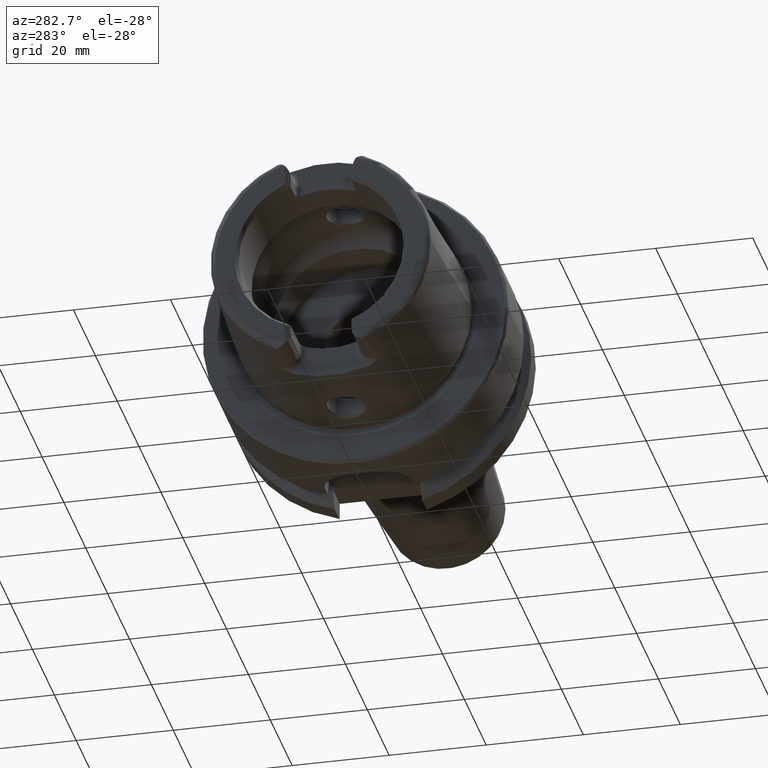
[diagram: clean part render]
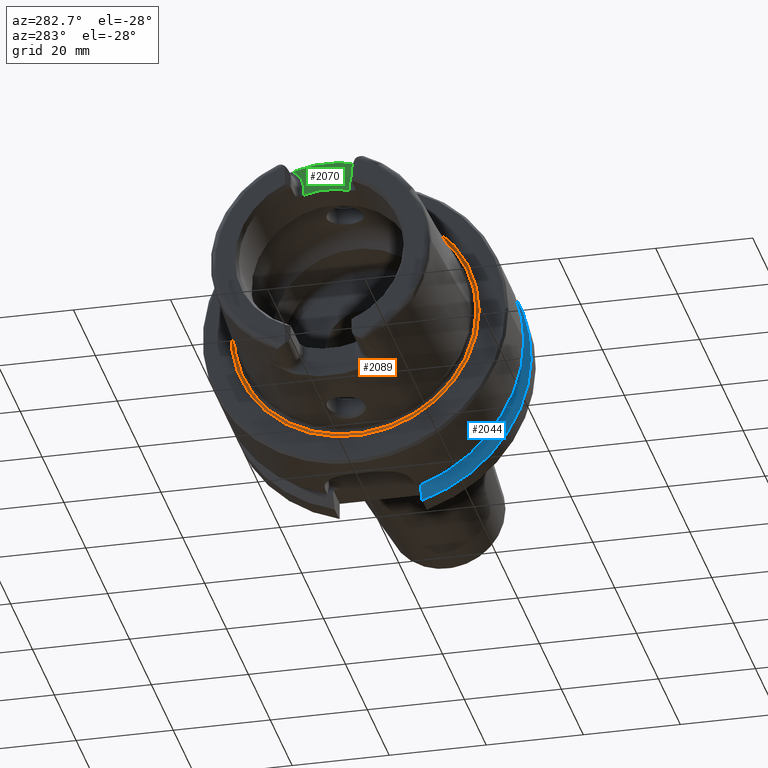
[diagram: same view with three faces highlighted in distinct colors, each labeled with its STEP entity id]
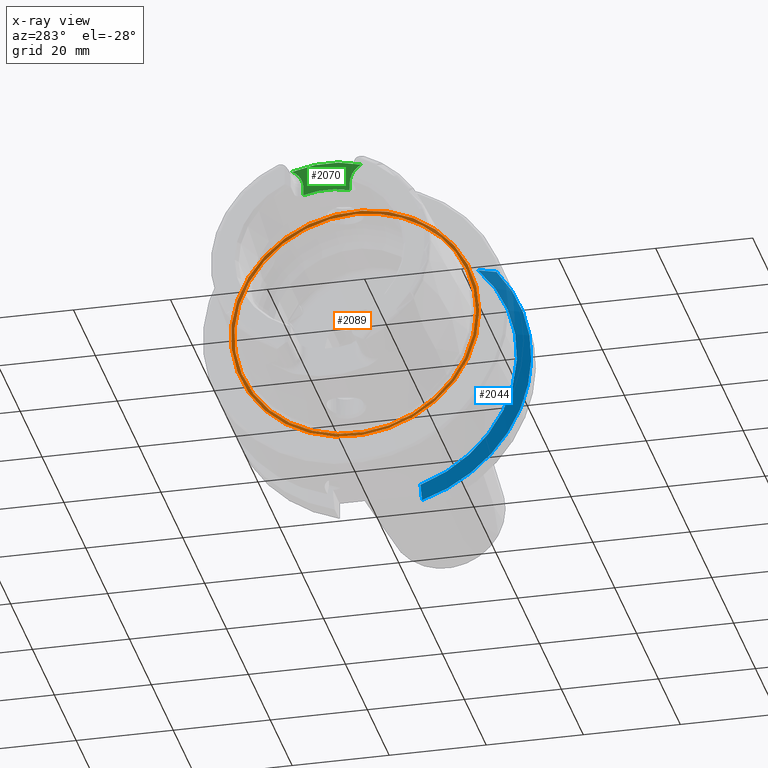
[diagram: x-ray of the same camera — body ghosted, the three highlighted faces saturated]
A machine part, auxiliary view with three faces highlighted in distinct colors.
The next image is the same camera in x-ray (body ghosted, the three faces saturated) — at least one of them is partly hidden behind the body in this view.
Their STEP definitions:

[orange] entity #2089 — the highlighted conical surface has half-angle 82 deg.
#326=FACE_OUTER_BOUND('',#457,.T.);
#457=EDGE_LOOP('',(#1934,#1935,#1936,#1937,#1938));
#568=LINE('',#4436,#676);
#676=VECTOR('',#2961,25.2598393130041);
#798=CIRCLE('',#2358,24.9317693424915);
#799=CIRCLE('',#2359,24.9317693424915);
#800=CIRCLE('',#2360,25.5879092835167);
#1005=VERTEX_POINT('',#4431);
#1006=VERTEX_POINT('',#4432);
#1007=VERTEX_POINT('',#4435);
#1316=EDGE_CURVE('',#1005,#1006,#798,.T.);
#1317=EDGE_CURVE('',#1006,#1005,#799,.T.);
#1318=EDGE_CURVE('',#1005,#1007,#568,.T.);
#1319=EDGE_CURVE('',#1007,#1007,#800,.T.);
#1934=ORIENTED_EDGE('',*,*,#1316,.T.);
#1935=ORIENTED_EDGE('',*,*,#1317,.T.);
#1936=ORIENTED_EDGE('',*,*,#1318,.T.);
#1937=ORIENTED_EDGE('',*,*,#1319,.F.);
#1938=ORIENTED_EDGE('',*,*,#1318,.F.);
#1973=CONICAL_SURFACE('',#2357,25.2598393130041,1.43116998663535);
#2089=ADVANCED_FACE('',(#326),#1973,.F.);
#2357=AXIS2_PLACEMENT_3D('',#4430,#2955,#2956);
#2358=AXIS2_PLACEMENT_3D('',#4433,#2957,#2958);
#2359=AXIS2_PLACEMENT_3D('',#4434,#2959,#2960);
#2360=AXIS2_PLACEMENT_3D('',#4437,#2962,#2963);
#2955=DIRECTION('center_axis',(-1.,0.,0.));
#2956=DIRECTION('ref_axis',(0.,1.,0.));
#2957=DIRECTION('center_axis',(1.,0.,0.));
#2958=DIRECTION('ref_axis',(0.,0.,-1.));
#2959=DIRECTION('center_axis',(1.,0.,0.));
#2960=DIRECTION('ref_axis',(0.,0.,-1.));
#2961=DIRECTION('',(-0.139173100960067,-0.99026806874157,-1.2127286206822E-16));
#2962=DIRECTION('center_axis',(1.,0.,0.));
#2963=DIRECTION('ref_axis',(0.,0.,-1.));
#4430=CARTESIAN_POINT('Origin',(0.0461072274966284,0.,0.));
#4431=CARTESIAN_POINT('',(0.092214454993257,-24.9317693424915,-3.05326115223623E-15));
#4432=CARTESIAN_POINT('',(0.0922144549932569,-3.05326115223623E-15,24.9317693424915));
#4433=CARTESIAN_POINT('Origin',(0.0922144549932569,0.,0.));
#4434=CARTESIAN_POINT('Origin',(0.0922144549932569,0.,0.));
#4435=CARTESIAN_POINT('',(-3.55618312575245E-16,-25.5879092835167,-3.13361512009315E-15));
#4436=CARTESIAN_POINT('',(0.0461072274966284,-25.2598393130041,-3.09343813616469E-15));
#4437=CARTESIAN_POINT('Origin',(0.,0.,0.));

[blue] entity #2044 — the highlighted conical surface has half-angle 60 deg.
#17=(
BOUNDED_CURVE()
B_SPLINE_CURVE(2,(#3834,#3835,#3836),.UNSPECIFIED.,.F.,.F.)
B_SPLINE_CURVE_WITH_KNOTS((3,3),(0.,0.378858277140999),.UNSPECIFIED.)
CURVE()
GEOMETRIC_REPRESENTATION_ITEM()
RATIONAL_B_SPLINE_CURVE((1.,1.00166199353854,1.))
REPRESENTATION_ITEM('')
);
#23=(
BOUNDED_CURVE()
B_SPLINE_CURVE(2,(#3974,#3975,#3976),.UNSPECIFIED.,.F.,.F.)
B_SPLINE_CURVE_WITH_KNOTS((3,3),(0.,0.311314369989023),.UNSPECIFIED.)
CURVE()
GEOMETRIC_REPRESENTATION_ITEM()
RATIONAL_B_SPLINE_CURVE((1.,1.00102053193598,1.))
REPRESENTATION_ITEM('')
);
#281=FACE_OUTER_BOUND('',#408,.T.);
#408=EDGE_LOOP('',(#1694,#1695,#1696,#1697));
#739=CIRCLE('',#2231,28.8975952641916);
#753=CIRCLE('',#2264,31.5);
#910=VERTEX_POINT('',#3830);
#912=VERTEX_POINT('',#3833);
#934=VERTEX_POINT('',#3930);
#939=VERTEX_POINT('',#3972);
#1150=EDGE_CURVE('',#912,#910,#17,.T.);
#1180=EDGE_CURVE('',#910,#934,#739,.T.);
#1190=EDGE_CURVE('',#934,#939,#23,.T.);
#1237=EDGE_CURVE('',#912,#939,#753,.T.);
#1694=ORIENTED_EDGE('',*,*,#1150,.T.);
#1695=ORIENTED_EDGE('',*,*,#1180,.T.);
#1696=ORIENTED_EDGE('',*,*,#1190,.T.);
#1697=ORIENTED_EDGE('',*,*,#1237,.F.);
#1968=CONICAL_SURFACE('',#2271,30.1987976320958,1.0471975511966);
#2044=ADVANCED_FACE('',(#281),#1968,.T.);
#2231=AXIS2_PLACEMENT_3D('',#3932,#2660,#2661);
#2264=AXIS2_PLACEMENT_3D('',#4184,#2746,#2747);
#2271=AXIS2_PLACEMENT_3D('',#4199,#2762,#2763);
#2660=DIRECTION('center_axis',(1.,0.,0.));
#2661=DIRECTION('ref_axis',(0.,0.,-1.));
#2746=DIRECTION('center_axis',(1.,0.,0.));
#2747=DIRECTION('ref_axis',(0.,0.,-1.));
#2762=DIRECTION('center_axis',(1.,0.,0.));
#2763=DIRECTION('ref_axis',(0.,-0.966819045705046,-0.255462194584608));
#3830=CARTESIAN_POINT('',(19.875,-20.8583559288126,20.));
#3833=CARTESIAN_POINT('',(21.3774990747593,-24.3361870472759,20.));
#3834=CARTESIAN_POINT('Ctrl Pts',(21.3774990747593,-24.3361870472759,20.));
#3835=CARTESIAN_POINT('Ctrl Pts',(20.5684390397668,-22.5223452916166,20.));
#3836=CARTESIAN_POINT('Ctrl Pts',(19.875,-20.8583559288126,20.));
#3930=CARTESIAN_POINT('',(19.875,-9.,-27.4603534582684));
#3932=CARTESIAN_POINT('Origin',(19.875,0.,0.));
#3972=CARTESIAN_POINT('',(21.3774990747593,-9.,-30.1869176962472));
#3974=CARTESIAN_POINT('Ctrl Pts',(19.875,-9.,-27.4603534582684));
#3975=CARTESIAN_POINT('Ctrl Pts',(20.5907174110267,-9.,-28.7648946319029));
#3976=CARTESIAN_POINT('Ctrl Pts',(21.3774990747593,-9.,-30.1869176962472));
#4184=CARTESIAN_POINT('Origin',(21.3774990747593,0.,0.));
#4199=CARTESIAN_POINT('Origin',(20.6262495373797,0.,0.));

[green] entity #2070 — the highlighted planar face has unit normal (-1, 0, 0).
#136=PLANE('',#2314);
#307=FACE_OUTER_BOUND('',#435,.T.);
#435=EDGE_LOOP('',(#1835,#1836,#1837,#1838,#1839,#1840));
#557=LINE('',#4291,#665);
#558=LINE('',#4320,#666);
#665=VECTOR('',#2808,10.);
#666=VECTOR('',#2821,10.);
#717=CIRCLE('',#2194,23.0180260521042);
#762=CIRCLE('',#2290,4.38);
#764=CIRCLE('',#2293,4.38);
#774=CIRCLE('',#2315,17.);
#889=VERTEX_POINT('',#3482);
#890=VERTEX_POINT('',#3497);
#983=VERTEX_POINT('',#4288);
#984=VERTEX_POINT('',#4290);
#985=VERTEX_POINT('',#4305);
#986=VERTEX_POINT('',#4309);
#1118=EDGE_CURVE('',#889,#890,#717,.T.);
#1265=EDGE_CURVE('',#983,#984,#557,.T.);
#1267=EDGE_CURVE('',#890,#983,#762,.T.);
#1269=EDGE_CURVE('',#985,#889,#764,.T.);
#1271=EDGE_CURVE('',#986,#985,#558,.T.);
#1287=EDGE_CURVE('',#984,#986,#774,.T.);
#1835=ORIENTED_EDGE('',*,*,#1267,.F.);
#1836=ORIENTED_EDGE('',*,*,#1118,.F.);
#1837=ORIENTED_EDGE('',*,*,#1269,.F.);
#1838=ORIENTED_EDGE('',*,*,#1271,.F.);
#1839=ORIENTED_EDGE('',*,*,#1287,.F.);
#1840=ORIENTED_EDGE('',*,*,#1265,.F.);
#2070=ADVANCED_FACE('',(#307),#136,.T.);
#2194=AXIS2_PLACEMENT_3D('',#3498,#2566,#2567);
#2290=AXIS2_PLACEMENT_3D('',#4303,#2811,#2812);
#2293=AXIS2_PLACEMENT_3D('',#4307,#2817,#2818);
#2314=AXIS2_PLACEMENT_3D('',#4368,#2864,#2865);
#2315=AXIS2_PLACEMENT_3D('',#4369,#2866,#2867);
#2566=DIRECTION('center_axis',(1.,0.,0.));
#2567=DIRECTION('ref_axis',(0.,1.,0.));
#2808=DIRECTION('',(0.,-1.58830189502884E-16,-1.));
#2811=DIRECTION('center_axis',(-1.,0.,0.));
#2812=DIRECTION('ref_axis',(0.,0.601141749549969,0.799142413433302));
#2817=DIRECTION('center_axis',(-1.,0.,0.));
#2818=DIRECTION('ref_axis',(0.,-0.601141749549969,0.799142413433301));
#2821=DIRECTION('',(0.,-1.58830189502884E-16,1.));
#2864=DIRECTION('center_axis',(-1.,0.,0.));
#2865=DIRECTION('ref_axis',(0.,0.,1.));
#2866=DIRECTION('center_axis',(-1.,0.,0.));
#2867=DIRECTION('ref_axis',(0.,1.,0.));
#3482=CARTESIAN_POINT('',(-26.,7.14127219004964,21.8822246319466));
#3497=CARTESIAN_POINT('',(-26.,-7.14127219004964,21.8822246319466));
#3498=CARTESIAN_POINT('Origin',(-26.,0.,0.));
#4288=CARTESIAN_POINT('',(-26.,-4.77,17.99));
#4290=CARTESIAN_POINT('',(-26.,-4.77,16.3170800083839));
#4291=CARTESIAN_POINT('',(-26.,-4.77,14.75));
#4303=CARTESIAN_POINT('Origin',(-26.,-9.15,17.99));
#4305=CARTESIAN_POINT('',(-26.,4.77,17.99));
#4307=CARTESIAN_POINT('Origin',(-26.,9.15,17.99));
#4309=CARTESIAN_POINT('',(-26.,4.77,16.3170800083839));
#4320=CARTESIAN_POINT('',(-26.,4.77,18.245));
#4368=CARTESIAN_POINT('Origin',(-26.,-2.22044604925031E-15,18.5));
#4369=CARTESIAN_POINT('Origin',(-26.,0.,0.));